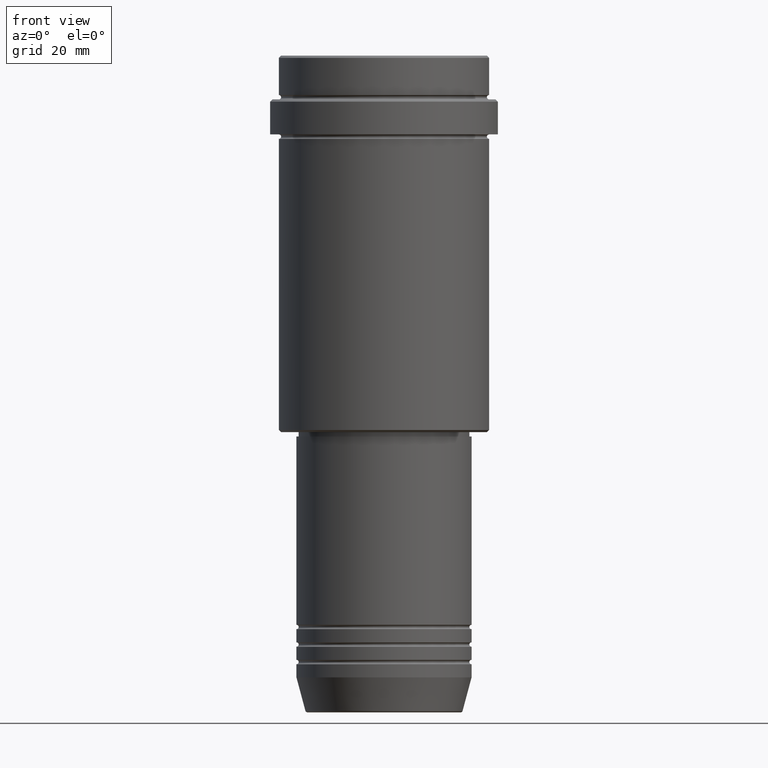
[diagram: clean part render]
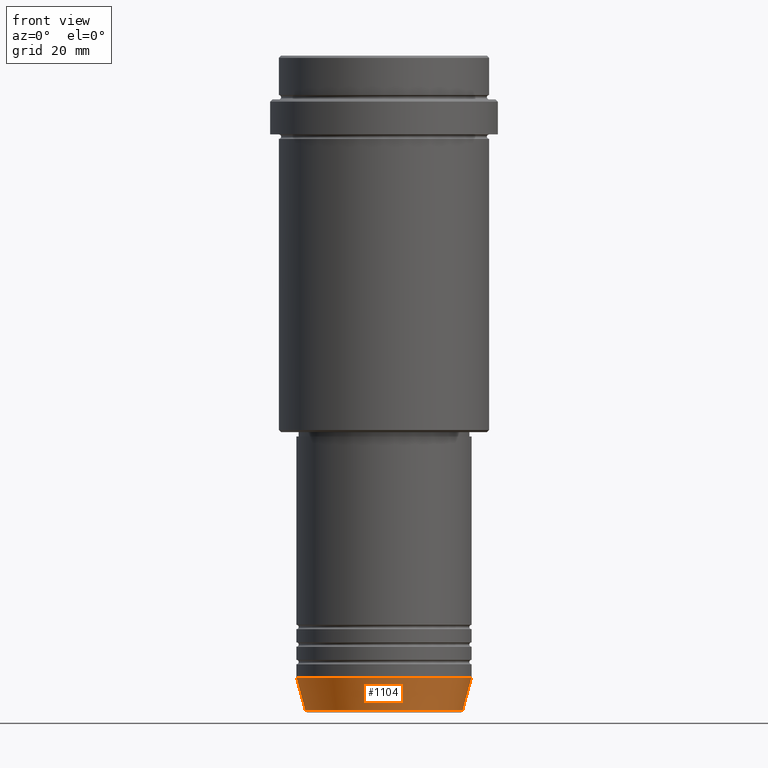
[diagram: same view with one face highlighted and labeled with its STEP entity id]
A machine part, front view. The second image highlights one B-rep face of the part: STEP entity #1104.
In plain terms, the highlighted conical surface has half-angle 15 deg.
Its self-contained STEP definition (entity closure, byte-faithful):
#13 = DIRECTION ( 'NONE',  ( -0.000000000000000000, -0.000000000000000000, 1.000000000000000000 ) ) ;
#107 = CARTESIAN_POINT ( 'NONE',  ( 20.00000000000000000, 0.000000000000000000, -142.0000000000000284 ) ) ;
#200 = DIRECTION ( 'NONE',  ( 1.000000000000000000, 0.000000000000000000, 0.000000000000000000 ) ) ;
#207 = AXIS2_PLACEMENT_3D ( 'NONE', #1154, #1066, #200 ) ;
#229 = VECTOR ( 'NONE', #787, 1000.000000000000114 ) ;
#232 = VECTOR ( 'NONE', #240, 1000.000000000000114 ) ;
#238 = ORIENTED_EDGE ( 'NONE', *, *, #1033, .T. ) ;
#240 = DIRECTION ( 'NONE',  ( 0.2588190451025215721, 0.000000000000000000, 0.9659258262890679791 ) ) ;
#257 = AXIS2_PLACEMENT_3D ( 'NONE', #581, #13, #1116 ) ;
#306 = CIRCLE ( 'NONE', #1098, 17.95570587970606979 ) ;
#315 = CARTESIAN_POINT ( 'NONE',  ( 0.000000000000000000, 0.000000000000000000, -149.6294095225512990 ) ) ;
#327 = ORIENTED_EDGE ( 'NONE', *, *, #1222, .F. ) ;
#354 = CARTESIAN_POINT ( 'NONE',  ( -20.00000000000000000, 2.449293598294706513E-15, -142.0000000000000284 ) ) ;
#363 = EDGE_CURVE ( 'NONE', #653, #723, #561, .T. ) ;
#432 = DIRECTION ( 'NONE',  ( -0.000000000000000000, -0.000000000000000000, 1.000000000000000000 ) ) ;
#513 = CARTESIAN_POINT ( 'NONE',  ( -20.00000000000000000, 2.449293598294706513E-15, -142.0000000000000284 ) ) ;
#560 = DIRECTION ( 'NONE',  ( 1.000000000000000000, 0.000000000000000000, 0.000000000000000000 ) ) ;
#561 = LINE ( 'NONE', #354, #229 ) ;
#575 = VERTEX_POINT ( 'NONE', #607 ) ;
#581 = CARTESIAN_POINT ( 'NONE',  ( 0.000000000000000000, 0.000000000000000000, -142.0000000000000284 ) ) ;
#607 = CARTESIAN_POINT ( 'NONE',  ( 17.95570587970606979, 0.000000000000000000, -149.6294095225512990 ) ) ;
#646 = EDGE_CURVE ( 'NONE', #575, #1353, #777, .T. ) ;
#653 = VERTEX_POINT ( 'NONE', #1240 ) ;
#654 = CONICAL_SURFACE ( 'NONE', #257, 20.00000000000000000, 0.2617993877991502960 ) ;
#672 = CIRCLE ( 'NONE', #207, 20.00000000000000000 ) ;
#723 = VERTEX_POINT ( 'NONE', #513 ) ;
#777 = LINE ( 'NONE', #783, #232 ) ;
#783 = CARTESIAN_POINT ( 'NONE',  ( 20.00000000000000000, 0.000000000000000000, -142.0000000000000284 ) ) ;
#787 = DIRECTION ( 'NONE',  ( -0.2588190451025215721, 3.169619151431775418E-17, 0.9659258262890679791 ) ) ;
#1017 = FACE_OUTER_BOUND ( 'NONE', #1130, .T. ) ;
#1033 = EDGE_CURVE ( 'NONE', #653, #575, #306, .T. ) ;
#1066 = DIRECTION ( 'NONE',  ( -0.000000000000000000, -0.000000000000000000, 1.000000000000000000 ) ) ;
#1098 = AXIS2_PLACEMENT_3D ( 'NONE', #315, #432, #560 ) ;
#1104 = ADVANCED_FACE ( 'NONE', ( #1017 ), #654, .T. ) ;
#1116 = DIRECTION ( 'NONE',  ( 1.000000000000000000, 0.000000000000000000, 0.000000000000000000 ) ) ;
#1130 = EDGE_LOOP ( 'NONE', ( #1193, #238, #1406, #327 ) ) ;
#1154 = CARTESIAN_POINT ( 'NONE',  ( 0.000000000000000000, 0.000000000000000000, -142.0000000000000284 ) ) ;
#1193 = ORIENTED_EDGE ( 'NONE', *, *, #363, .F. ) ;
#1222 = EDGE_CURVE ( 'NONE', #723, #1353, #672, .T. ) ;
#1240 = CARTESIAN_POINT ( 'NONE',  ( -17.95570587970606979, 2.324116685748020582E-15, -149.6294095225512990 ) ) ;
#1353 = VERTEX_POINT ( 'NONE', #107 ) ;
#1406 = ORIENTED_EDGE ( 'NONE', *, *, #646, .T. ) ;